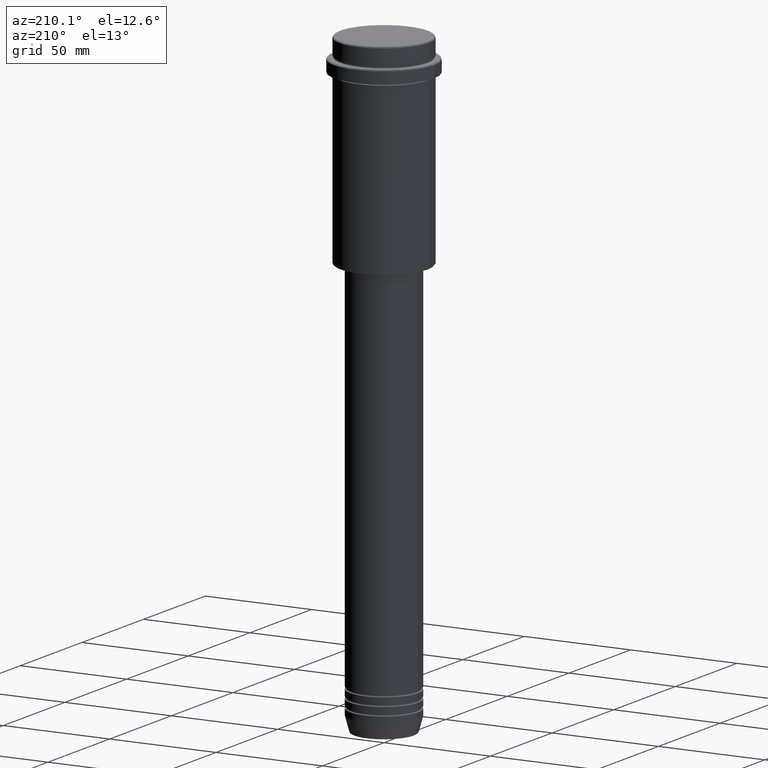
[diagram: clean part render]
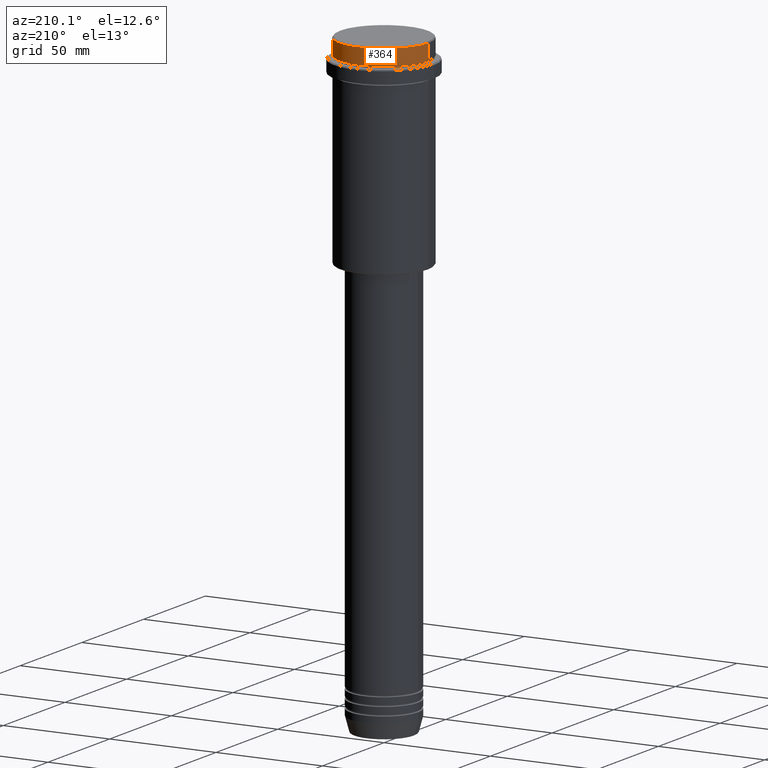
[diagram: same view with one face highlighted and labeled with its STEP entity id]
A machine part, auxiliary view. The second image highlights one B-rep face of the part: STEP entity #364.
In plain terms, the highlighted cylindrical surface (partial cylindrical patch) has radius 21 mm, axis along (-0, -0, 1).
Its self-contained STEP definition (entity closure, byte-faithful):
#49 = VECTOR ( 'NONE', #722, 1000.000000000000000 ) ;
#53 = ORIENTED_EDGE ( 'NONE', *, *, #935, .F. ) ;
#204 = CARTESIAN_POINT ( 'NONE',  ( 0.000000000000000000, 0.000000000000000000, -0.4999999999999796274 ) ) ;
#211 = LINE ( 'NONE', #1417, #968 ) ;
#219 = EDGE_CURVE ( 'NONE', #376, #1287, #211, .T. ) ;
#250 = VERTEX_POINT ( 'NONE', #790 ) ;
#263 = ORIENTED_EDGE ( 'NONE', *, *, #429, .T. ) ;
#364 = ADVANCED_FACE ( 'NONE', ( #476 ), #815, .T. ) ;
#376 = VERTEX_POINT ( 'NONE', #927 ) ;
#380 = CARTESIAN_POINT ( 'NONE',  ( 0.000000000000000000, 0.000000000000000000, -7.999999999999998224 ) ) ;
#414 = VERTEX_POINT ( 'NONE', #1069 ) ;
#429 = EDGE_CURVE ( 'NONE', #250, #376, #456, .T. ) ;
#456 = CIRCLE ( 'NONE', #1377, 20.99999999999999645 ) ;
#457 = EDGE_LOOP ( 'NONE', ( #263, #1123, #710, #53 ) ) ;
#476 = FACE_OUTER_BOUND ( 'NONE', #457, .T. ) ;
#609 = CARTESIAN_POINT ( 'NONE',  ( 0.000000000000000000, 0.000000000000000000, 0.000000000000000000 ) ) ;
#614 = CARTESIAN_POINT ( 'NONE',  ( -20.99999999999999645, 2.571758278209441267E-15, -0.4999999999999796274 ) ) ;
#626 = CIRCLE ( 'NONE', #1397, 20.99999999999999645 ) ;
#633 = DIRECTION ( 'NONE',  ( 0.000000000000000000, 0.000000000000000000, -1.000000000000000000 ) ) ;
#655 = DIRECTION ( 'NONE',  ( 1.000000000000000000, 0.000000000000000000, 0.000000000000000000 ) ) ;
#664 = EDGE_CURVE ( 'NONE', #1287, #414, #626, .T. ) ;
#704 = DIRECTION ( 'NONE',  ( -0.000000000000000000, -0.000000000000000000, 1.000000000000000000 ) ) ;
#710 = ORIENTED_EDGE ( 'NONE', *, *, #664, .T. ) ;
#722 = DIRECTION ( 'NONE',  ( -0.000000000000000000, -0.000000000000000000, 1.000000000000000000 ) ) ;
#727 = DIRECTION ( 'NONE',  ( 1.000000000000000000, 0.000000000000000000, 0.000000000000000000 ) ) ;
#790 = CARTESIAN_POINT ( 'NONE',  ( 20.99999999999999645, 0.000000000000000000, -7.999999999999998224 ) ) ;
#815 = CYLINDRICAL_SURFACE ( 'NONE', #874, 20.99999999999999645 ) ;
#874 = AXIS2_PLACEMENT_3D ( 'NONE', #609, #704, #918 ) ;
#918 = DIRECTION ( 'NONE',  ( 1.000000000000000000, 0.000000000000000000, 0.000000000000000000 ) ) ;
#927 = CARTESIAN_POINT ( 'NONE',  ( -20.99999999999999645, 2.571758278209441267E-15, -7.999999999999998224 ) ) ;
#935 = EDGE_CURVE ( 'NONE', #250, #414, #1160, .T. ) ;
#949 = DIRECTION ( 'NONE',  ( -0.000000000000000000, -0.000000000000000000, 1.000000000000000000 ) ) ;
#968 = VECTOR ( 'NONE', #1075, 1000.000000000000000 ) ;
#1069 = CARTESIAN_POINT ( 'NONE',  ( 20.99999999999999645, 0.000000000000000000, -0.4999999999999796274 ) ) ;
#1075 = DIRECTION ( 'NONE',  ( -0.000000000000000000, -0.000000000000000000, 1.000000000000000000 ) ) ;
#1123 = ORIENTED_EDGE ( 'NONE', *, *, #219, .T. ) ;
#1160 = LINE ( 'NONE', #1270, #49 ) ;
#1270 = CARTESIAN_POINT ( 'NONE',  ( 20.99999999999999645, 0.000000000000000000, 0.000000000000000000 ) ) ;
#1287 = VERTEX_POINT ( 'NONE', #614 ) ;
#1377 = AXIS2_PLACEMENT_3D ( 'NONE', #380, #949, #727 ) ;
#1397 = AXIS2_PLACEMENT_3D ( 'NONE', #204, #633, #655 ) ;
#1417 = CARTESIAN_POINT ( 'NONE',  ( -20.99999999999999645, 2.571758278209441267E-15, 0.000000000000000000 ) ) ;